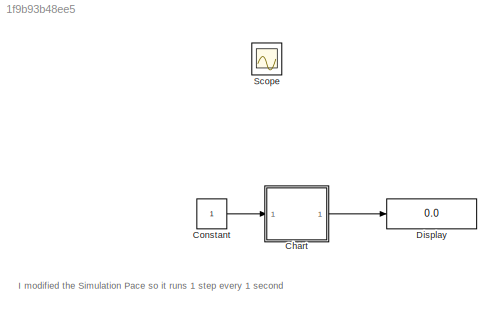
MODEL slx_1f9b93b48ee5
KIND model
CONFIG AbsTol = auto
CONFIG EnableMultiTasking = off
CONFIG FixedStep = auto
CONFIG MaxStep = auto
CONFIG MinStep = auto
CONFIG RelTol = 1e-3
CONFIG SampleTimeConstraint = Unconstrained
CONFIG SolverName = VariableStepAuto
CONFIG StartTime = 0.0
CONFIG StopTime = 100.0
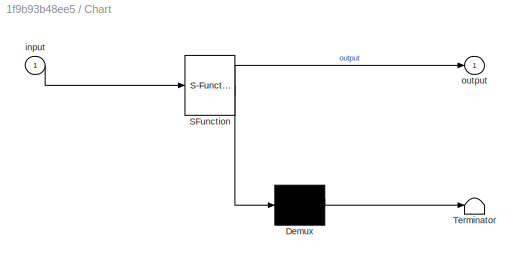
BLOCK [SubSystem] Chart
  ErrorFcn = Stateflow.Translate.translate
  PermitHierarchicalResolution = ExplicitOnly
  SFBlockType = Chart
  TreatAsAtomicUnit = on
BLOCK [Demux] Chart/ Demux 
  Outputs = 1
BLOCK [S-Function] Chart/ SFunction 
  EnableBusSupport = on
  FunctionName = sf_sfun
  PortCounts = [1 2]
  SFcnIsStateOwnerBlock = off
  SFunctionDeploymentMode = off
  Tag = Stateflow S-Function 3
BLOCK [Terminator] Chart/ Terminator 
BLOCK [Inport] Chart/input
BLOCK [Outport] Chart/output
BLOCK [Constant] Constant
BLOCK [Display] Display
  Decimation = 1
BLOCK [Scope] Scope
  Floating = off
  IOType = viewer
  NumInputPorts = 1
  ScopeSpecificationString = Simulink.scopes.TimeScopeBlockCfg('CurrentConfiguration', extmgr.ConfigurationSet(extmgr.Configuration('Core','General UI',true),extmgr.Configuration('Core','Source UI',true),extmgr.Configuration('Sources','WiredSimulink',true),extmgr.Configuration('Visuals','Time Domain',true,'SerializedDisplays',{struct('MinYLimReal','-1.375','MaxYLimReal','12.375','YLabelReal','','MinYLimMag','0.00000','MaxYLim...<+1461ch>
ANNOTATION (root): I modified the Simulation Pace so it runs 1 step every 1 second
LINE Chart:1 -> Display:1
LINE Constant:1 -> Chart:1
CHART Chart states=3 transitions=6
  STATE_LABEL 'State0\nx=0;\noutput=x;'
  STATE_LABEL 'State1\nx = x + input;\noutput=x;'
  STATE_LABEL 'State2\nx = x - 1\noutput=x;'
CHART  states=0 transitions=0
